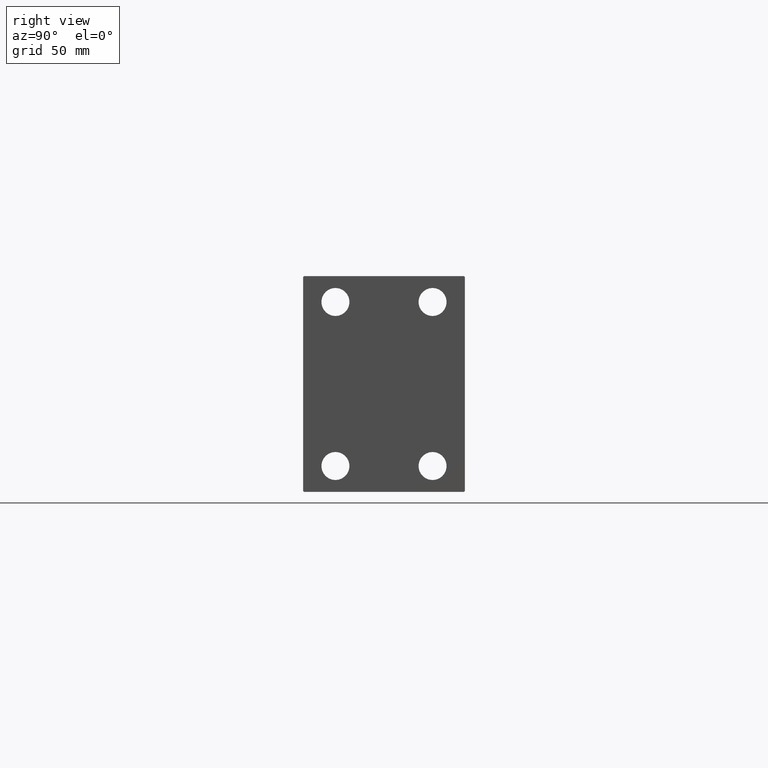
[diagram: clean part render]
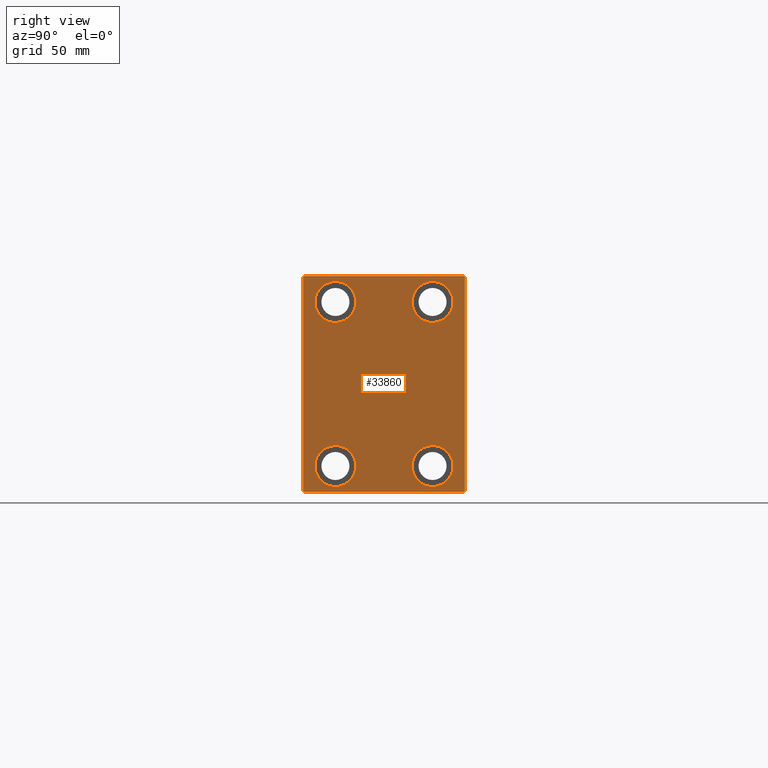
[diagram: same view with one face highlighted and labeled with its STEP entity id]
A machine part, right view. The second image highlights one B-rep face of the part: STEP entity #33860.
In plain terms, the highlighted planar face has unit normal (1, 0, 0).
Its self-contained STEP definition (entity closure, byte-faithful):
#12 = AXIS2_PLACEMENT_3D ( 'NONE', #7450, #28688, #1154 ) ;
#151 = EDGE_LOOP ( 'NONE', ( #28431, #29320 ) ) ;
#506 = FACE_BOUND ( 'NONE', #151, .T. ) ;
#1154 = DIRECTION ( 'NONE',  ( 0.000000000000000000, 0.000000000000000000, 1.000000000000000000 ) ) ;
#1402 = DIRECTION ( 'NONE',  ( 0.000000000000000000, -1.387778780781445676E-16, 1.000000000000000000 ) ) ;
#1545 = DIRECTION ( 'NONE',  ( 0.000000000000000000, 0.000000000000000000, 1.000000000000000000 ) ) ;
#1635 = ORIENTED_EDGE ( 'NONE', *, *, #22911, .T. ) ;
#2060 = CARTESIAN_POINT ( 'NONE',  ( 273.0000000000000000, 37.49999999999999289, 49.49999999999995026 ) ) ;
#2383 = VERTEX_POINT ( 'NONE', #6760 ) ;
#2544 = CARTESIAN_POINT ( 'NONE',  ( 273.0000000000000000, 22.49999999999999645, -37.99999999999999289 ) ) ;
#2610 = DIRECTION ( 'NONE',  ( -1.000000000000000000, -0.000000000000000000, -0.000000000000000000 ) ) ;
#2684 = VERTEX_POINT ( 'NONE', #6707 ) ;
#3592 = EDGE_CURVE ( 'NONE', #4936, #6159, #34239, .T. ) ;
#3630 = ORIENTED_EDGE ( 'NONE', *, *, #43835, .T. ) ;
#4145 = CARTESIAN_POINT ( 'NONE',  ( 273.0000000000000000, -37.50000000000000711, 49.99999999999999289 ) ) ;
#4193 = CARTESIAN_POINT ( 'NONE',  ( 273.0000000000000000, 36.99999999999993605, 50.00000000000000711 ) ) ;
#4304 = CIRCLE ( 'NONE', #12169, 9.500000000000001776 ) ;
#4892 = VECTOR ( 'NONE', #36005, 1000.000000000000000 ) ;
#4936 = VERTEX_POINT ( 'NONE', #31974 ) ;
#4956 = EDGE_CURVE ( 'NONE', #34766, #13832, #29291, .T. ) ;
#5019 = CIRCLE ( 'NONE', #12, 9.500000000000001776 ) ;
#5284 = CARTESIAN_POINT ( 'NONE',  ( 273.0000000000000000, 37.00000000000000711, -50.00000000000000000 ) ) ;
#5593 = CIRCLE ( 'NONE', #30599, 9.500000000000001776 ) ;
#5957 = CARTESIAN_POINT ( 'NONE',  ( 273.0000000000000000, 22.49999999999999645, -47.49999999999999289 ) ) ;
#6015 = VERTEX_POINT ( 'NONE', #39369 ) ;
#6159 = VERTEX_POINT ( 'NONE', #10924 ) ;
#6249 = CARTESIAN_POINT ( 'NONE',  ( 273.0000000000000000, -22.49999999999999645, 47.49999999999999289 ) ) ;
#6526 = CARTESIAN_POINT ( 'NONE',  ( 273.0000000000000000, -22.49999999999999645, 37.99999999999999289 ) ) ;
#6707 = CARTESIAN_POINT ( 'NONE',  ( 273.0000000000000000, 37.50000000000000711, -49.49999999999997158 ) ) ;
#6760 = CARTESIAN_POINT ( 'NONE',  ( 273.0000000000000000, -22.50000000000000711, -47.49999999999999289 ) ) ;
#7048 = ORIENTED_EDGE ( 'NONE', *, *, #9065, .T. ) ;
#7200 = DIRECTION ( 'NONE',  ( 0.000000000000000000, 0.000000000000000000, 1.000000000000000000 ) ) ;
#7395 = DIRECTION ( 'NONE',  ( 0.000000000000000000, -0.7071067811865474617, -0.7071067811865474617 ) ) ;
#7450 = CARTESIAN_POINT ( 'NONE',  ( 273.0000000000000000, 22.50000000000000355, 37.99999999999999289 ) ) ;
#7865 = CIRCLE ( 'NONE', #38558, 9.500000000000001776 ) ;
#8097 = EDGE_CURVE ( 'NONE', #38809, #35742, #7865, .T. ) ;
#8220 = CIRCLE ( 'NONE', #26775, 9.500000000000001776 ) ;
#8569 = ORIENTED_EDGE ( 'NONE', *, *, #10953, .T. ) ;
#8595 = DIRECTION ( 'NONE',  ( 0.000000000000000000, 0.000000000000000000, 1.000000000000000000 ) ) ;
#8907 = CIRCLE ( 'NONE', #16054, 9.500000000000001776 ) ;
#9025 = ORIENTED_EDGE ( 'NONE', *, *, #3592, .T. ) ;
#9036 = LINE ( 'NONE', #18877, #38030 ) ;
#9065 = EDGE_CURVE ( 'NONE', #39119, #31677, #4304, .T. ) ;
#9371 = CARTESIAN_POINT ( 'NONE',  ( 273.0000000000000000, 43.50000000000022737, 43.49999999999962341 ) ) ;
#9502 = DIRECTION ( 'NONE',  ( 0.000000000000000000, 0.000000000000000000, 1.000000000000000000 ) ) ;
#9790 = EDGE_CURVE ( 'NONE', #35742, #38809, #5019, .T. ) ;
#9795 = DIRECTION ( 'NONE',  ( -1.000000000000000000, -0.000000000000000000, -0.000000000000000000 ) ) ;
#9878 = CARTESIAN_POINT ( 'NONE',  ( 273.0000000000000000, 22.49999999999999645, -28.49999999999998934 ) ) ;
#9930 = DIRECTION ( 'NONE',  ( -1.000000000000000000, -0.000000000000000000, -0.000000000000000000 ) ) ;
#10112 = CARTESIAN_POINT ( 'NONE',  ( 273.0000000000000000, 37.49999999999999289, 50.00000000000000711 ) ) ;
#10350 = DIRECTION ( 'NONE',  ( -1.000000000000000000, -0.000000000000000000, -0.000000000000000000 ) ) ;
#10780 = DIRECTION ( 'NONE',  ( 0.000000000000000000, -1.000000000000000000, -1.850371707708594316E-16 ) ) ;
#10784 = CIRCLE ( 'NONE', #22210, 9.500000000000001776 ) ;
#10801 = CIRCLE ( 'NONE', #35800, 9.500000000000001776 ) ;
#10924 = CARTESIAN_POINT ( 'NONE',  ( 273.0000000000000000, -37.50000000000000711, 49.49999999999994316 ) ) ;
#10953 = EDGE_CURVE ( 'NONE', #16157, #2383, #10801, .T. ) ;
#11265 = DIRECTION ( 'NONE',  ( -1.000000000000000000, -0.000000000000000000, -0.000000000000000000 ) ) ;
#12169 = AXIS2_PLACEMENT_3D ( 'NONE', #24912, #11265, #43204 ) ;
#12172 = CARTESIAN_POINT ( 'NONE',  ( 273.0000000000000000, -22.50000000000000711, -37.99999999999999289 ) ) ;
#12507 = EDGE_CURVE ( 'NONE', #26382, #41834, #22421, .T. ) ;
#12743 = VECTOR ( 'NONE', #7395, 1000.000000000000114 ) ;
#13027 = LINE ( 'NONE', #23980, #32457 ) ;
#13832 = VERTEX_POINT ( 'NONE', #4193 ) ;
#14176 = FACE_BOUND ( 'NONE', #33004, .T. ) ;
#14757 = CARTESIAN_POINT ( 'NONE',  ( 273.0000000000000000, -37.50000000000000711, -49.50000000000000711 ) ) ;
#15082 = DIRECTION ( 'NONE',  ( -1.000000000000000000, -0.000000000000000000, -0.000000000000000000 ) ) ;
#15211 = ORIENTED_EDGE ( 'NONE', *, *, #9790, .T. ) ;
#16054 = AXIS2_PLACEMENT_3D ( 'NONE', #40007, #2610, #39785 ) ;
#16157 = VERTEX_POINT ( 'NONE', #39629 ) ;
#18476 = VECTOR ( 'NONE', #10780, 1000.000000000000000 ) ;
#18877 = CARTESIAN_POINT ( 'NONE',  ( 273.0000000000000000, -37.50000000000000711, -50.00000000000000711 ) ) ;
#19470 = VERTEX_POINT ( 'NONE', #6249 ) ;
#20109 = ORIENTED_EDGE ( 'NONE', *, *, #29468, .T. ) ;
#20668 = PLANE ( 'NONE',  #37355 ) ;
#21123 = EDGE_LOOP ( 'NONE', ( #7048, #36693 ) ) ;
#22210 = AXIS2_PLACEMENT_3D ( 'NONE', #2544, #9930, #9502 ) ;
#22421 = LINE ( 'NONE', #35606, #42269 ) ;
#22911 = EDGE_CURVE ( 'NONE', #13832, #4936, #41442, .T. ) ;
#23053 = EDGE_CURVE ( 'NONE', #2383, #16157, #5593, .T. ) ;
#23405 = EDGE_LOOP ( 'NONE', ( #15211, #41293 ) ) ;
#23980 = CARTESIAN_POINT ( 'NONE',  ( 273.0000000000000000, 43.50000000000103029, -43.49999999999860734 ) ) ;
#24660 = CARTESIAN_POINT ( 'NONE',  ( 273.0000000000000000, 22.50000000000000355, 28.49999999999998934 ) ) ;
#24912 = CARTESIAN_POINT ( 'NONE',  ( 273.0000000000000000, 22.49999999999999645, -37.99999999999999289 ) ) ;
#25191 = DIRECTION ( 'NONE',  ( 0.000000000000000000, 0.000000000000000000, -1.000000000000000000 ) ) ;
#26382 = VERTEX_POINT ( 'NONE', #14757 ) ;
#26775 = AXIS2_PLACEMENT_3D ( 'NONE', #6526, #10350, #7200 ) ;
#27128 = DIRECTION ( 'NONE',  ( -0.000000000000000000, 0.7071067811865279218, 0.7071067811865672237 ) ) ;
#27391 = FACE_BOUND ( 'NONE', #21123, .T. ) ;
#27834 = DIRECTION ( 'NONE',  ( 1.000000000000000000, 0.000000000000000000, 0.000000000000000000 ) ) ;
#27984 = ORIENTED_EDGE ( 'NONE', *, *, #12507, .T. ) ;
#28333 = LINE ( 'NONE', #4145, #41560 ) ;
#28420 = CARTESIAN_POINT ( 'NONE',  ( 273.0000000000000000, 22.50000000000000355, 47.49999999999999289 ) ) ;
#28431 = ORIENTED_EDGE ( 'NONE', *, *, #42376, .T. ) ;
#28665 = EDGE_CURVE ( 'NONE', #31677, #39119, #10784, .T. ) ;
#28688 = DIRECTION ( 'NONE',  ( -1.000000000000000000, -0.000000000000000000, -0.000000000000000000 ) ) ;
#28797 = EDGE_LOOP ( 'NONE', ( #1635, #9025, #20109, #27984, #29935, #42517, #3630, #38670 ) ) ;
#29291 = LINE ( 'NONE', #9371, #4892 ) ;
#29320 = ORIENTED_EDGE ( 'NONE', *, *, #43991, .T. ) ;
#29468 = EDGE_CURVE ( 'NONE', #6159, #26382, #28333, .T. ) ;
#29935 = ORIENTED_EDGE ( 'NONE', *, *, #36508, .T. ) ;
#30599 = AXIS2_PLACEMENT_3D ( 'NONE', #44040, #9795, #37088 ) ;
#31129 = CARTESIAN_POINT ( 'NONE',  ( 273.0000000000000000, -36.99999999999997868, -50.00000000000000711 ) ) ;
#31677 = VERTEX_POINT ( 'NONE', #9878 ) ;
#31791 = VECTOR ( 'NONE', #1402, 1000.000000000000000 ) ;
#31974 = CARTESIAN_POINT ( 'NONE',  ( 273.0000000000000000, -36.99999999999995026, 49.99999999999999289 ) ) ;
#32457 = VECTOR ( 'NONE', #27128, 1000.000000000000000 ) ;
#32887 = DIRECTION ( 'NONE',  ( -1.000000000000000000, -0.000000000000000000, -0.000000000000000000 ) ) ;
#32963 = DIRECTION ( 'NONE',  ( 0.000000000000000000, 1.000000000000000000, 9.251858538542970348E-17 ) ) ;
#33004 = EDGE_LOOP ( 'NONE', ( #38608, #8569 ) ) ;
#33860 = ADVANCED_FACE ( 'NONE', ( #27391, #506, #41047, #14176, #40819 ), #20668, .T. ) ;
#34239 = LINE ( 'NONE', #38051, #12743 ) ;
#34311 = CARTESIAN_POINT ( 'NONE',  ( 273.0000000000000000, 0.000000000000000000, 0.000000000000000000 ) ) ;
#34766 = VERTEX_POINT ( 'NONE', #2060 ) ;
#35430 = CARTESIAN_POINT ( 'NONE',  ( 273.0000000000000000, 37.50000000000000711, -50.00000000000000000 ) ) ;
#35606 = CARTESIAN_POINT ( 'NONE',  ( 273.0000000000000000, -43.49999999999896261, -43.50000000000138556 ) ) ;
#35742 = VERTEX_POINT ( 'NONE', #24660 ) ;
#35800 = AXIS2_PLACEMENT_3D ( 'NONE', #12172, #15082, #8595 ) ;
#36005 = DIRECTION ( 'NONE',  ( -0.000000000000000000, -0.7071067811865426878, 0.7071067811865524577 ) ) ;
#36244 = CARTESIAN_POINT ( 'NONE',  ( 273.0000000000000000, 22.50000000000000355, 37.99999999999999289 ) ) ;
#36508 = EDGE_CURVE ( 'NONE', #41834, #38283, #9036, .T. ) ;
#36693 = ORIENTED_EDGE ( 'NONE', *, *, #28665, .T. ) ;
#37088 = DIRECTION ( 'NONE',  ( 0.000000000000000000, 0.000000000000000000, 1.000000000000000000 ) ) ;
#37355 = AXIS2_PLACEMENT_3D ( 'NONE', #34311, #27834, #40590 ) ;
#38030 = VECTOR ( 'NONE', #32963, 1000.000000000000000 ) ;
#38051 = CARTESIAN_POINT ( 'NONE',  ( 273.0000000000000000, -43.49999999999997158, 43.49999999999997158 ) ) ;
#38283 = VERTEX_POINT ( 'NONE', #5284 ) ;
#38558 = AXIS2_PLACEMENT_3D ( 'NONE', #36244, #32887, #1545 ) ;
#38608 = ORIENTED_EDGE ( 'NONE', *, *, #23053, .T. ) ;
#38670 = ORIENTED_EDGE ( 'NONE', *, *, #4956, .T. ) ;
#38803 = LINE ( 'NONE', #35430, #31791 ) ;
#38809 = VERTEX_POINT ( 'NONE', #28420 ) ;
#39119 = VERTEX_POINT ( 'NONE', #5957 ) ;
#39369 = CARTESIAN_POINT ( 'NONE',  ( 273.0000000000000000, -22.49999999999999645, 28.49999999999998934 ) ) ;
#39424 = DIRECTION ( 'NONE',  ( -0.000000000000000000, 0.7071067811865672237, -0.7071067811865279218 ) ) ;
#39629 = CARTESIAN_POINT ( 'NONE',  ( 273.0000000000000000, -22.50000000000000711, -28.49999999999998934 ) ) ;
#39785 = DIRECTION ( 'NONE',  ( 0.000000000000000000, 0.000000000000000000, 1.000000000000000000 ) ) ;
#40007 = CARTESIAN_POINT ( 'NONE',  ( 273.0000000000000000, -22.49999999999999645, 37.99999999999999289 ) ) ;
#40590 = DIRECTION ( 'NONE',  ( 0.000000000000000000, 0.000000000000000000, -1.000000000000000000 ) ) ;
#40819 = FACE_OUTER_BOUND ( 'NONE', #28797, .T. ) ;
#41047 = FACE_BOUND ( 'NONE', #23405, .T. ) ;
#41293 = ORIENTED_EDGE ( 'NONE', *, *, #8097, .T. ) ;
#41442 = LINE ( 'NONE', #10112, #18476 ) ;
#41560 = VECTOR ( 'NONE', #25191, 1000.000000000000000 ) ;
#41834 = VERTEX_POINT ( 'NONE', #31129 ) ;
#42269 = VECTOR ( 'NONE', #39424, 1000.000000000000000 ) ;
#42376 = EDGE_CURVE ( 'NONE', #6015, #19470, #8907, .T. ) ;
#42517 = ORIENTED_EDGE ( 'NONE', *, *, #43114, .T. ) ;
#43114 = EDGE_CURVE ( 'NONE', #38283, #2684, #13027, .T. ) ;
#43204 = DIRECTION ( 'NONE',  ( 0.000000000000000000, 0.000000000000000000, 1.000000000000000000 ) ) ;
#43835 = EDGE_CURVE ( 'NONE', #2684, #34766, #38803, .T. ) ;
#43991 = EDGE_CURVE ( 'NONE', #19470, #6015, #8220, .T. ) ;
#44040 = CARTESIAN_POINT ( 'NONE',  ( 273.0000000000000000, -22.50000000000000711, -37.99999999999999289 ) ) ;